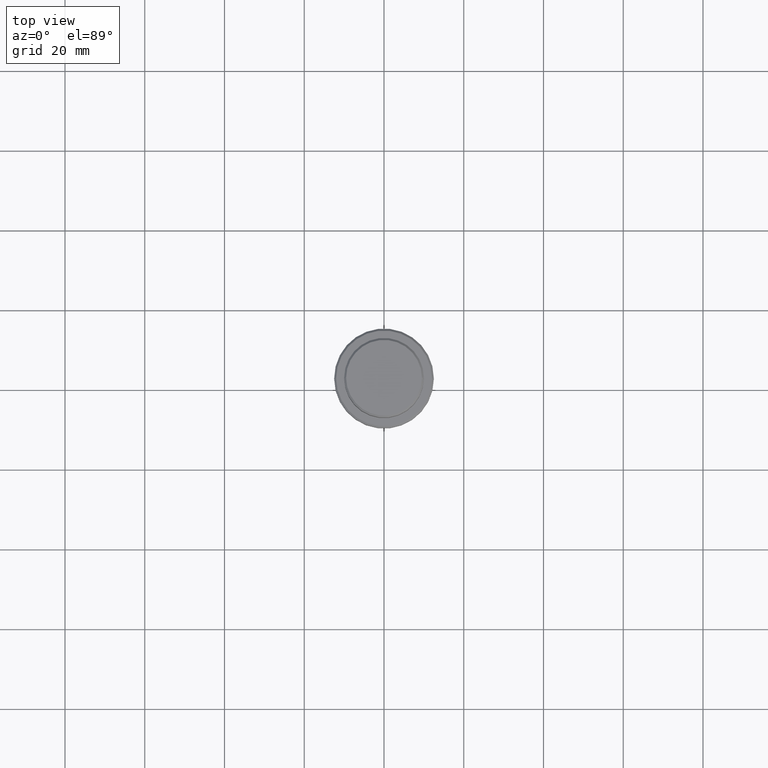
[diagram: clean part render]
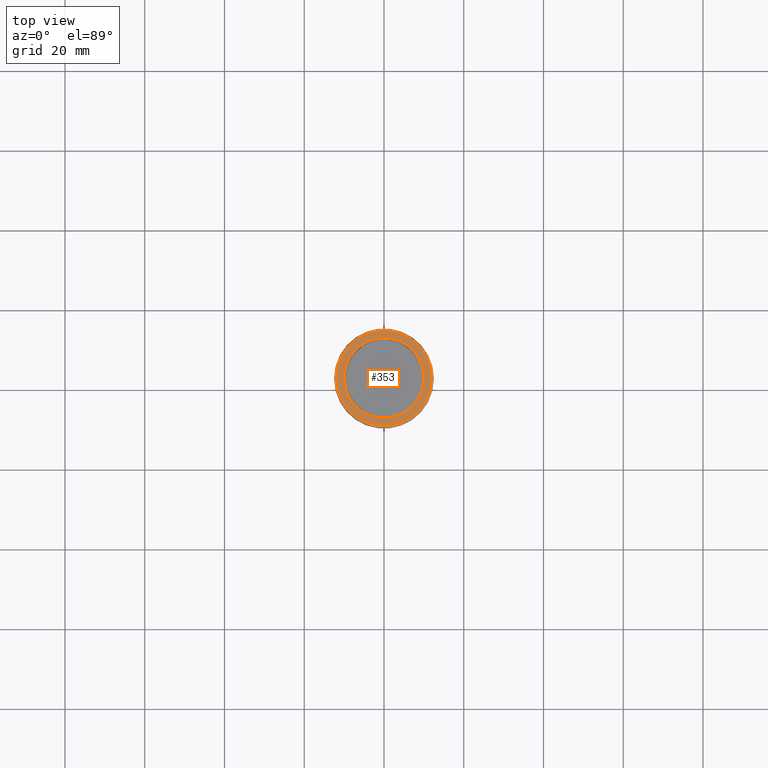
[diagram: same view with one face highlighted and labeled with its STEP entity id]
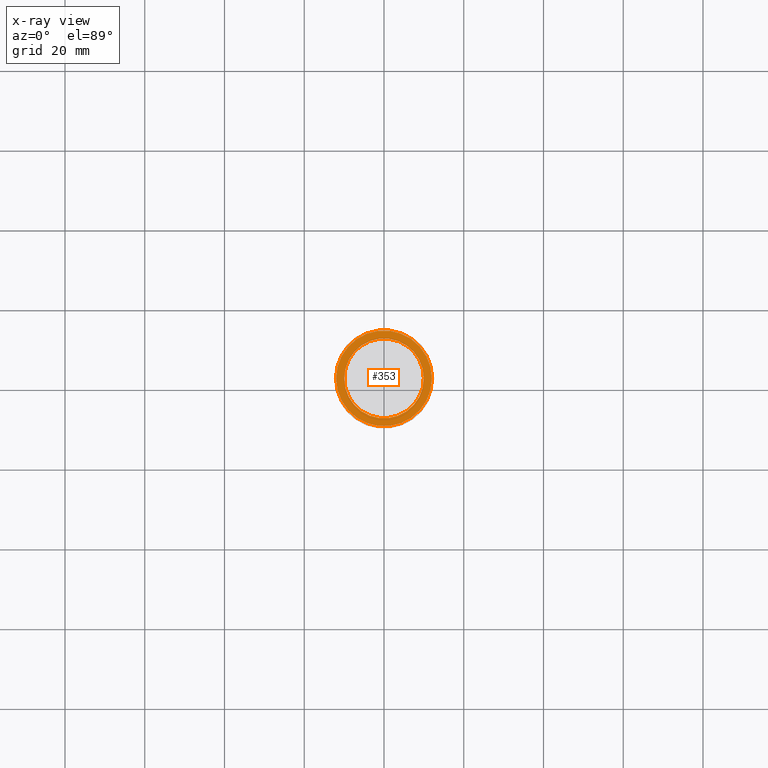
[diagram: x-ray of the same camera — body ghosted, the highlighted face saturated]
A machine part, top view. The second image highlights one B-rep face of the part: STEP entity #353.
The next image is the same camera in x-ray: the body ghosted, the highlighted face saturated — about 0% of this face is hidden behind the body in this view.
In plain terms, the highlighted planar face has unit normal (0, -0, 1).
Its self-contained STEP definition (entity closure, byte-faithful):
#60 = DIRECTION ( 'NONE',  ( 0.000000000000000000, 0.000000000000000000, -1.000000000000000000 ) ) ;
#87 = DIRECTION ( 'NONE',  ( 1.000000000000000000, 0.000000000000000000, 0.000000000000000000 ) ) ;
#156 = DIRECTION ( 'NONE',  ( 1.000000000000000000, 0.000000000000000000, 0.000000000000000000 ) ) ;
#179 = EDGE_CURVE ( 'NONE', #275, #520, #192, .T. ) ;
#192 = CIRCLE ( 'NONE', #987, 9.999999999999994671 ) ;
#199 = CARTESIAN_POINT ( 'NONE',  ( -9.999999999999994671, 1.224646799147352665E-15, -9.000000000000001776 ) ) ;
#258 = AXIS2_PLACEMENT_3D ( 'NONE', #312, #821, #290 ) ;
#265 = DIRECTION ( 'NONE',  ( 1.000000000000000000, 0.000000000000000000, 0.000000000000000000 ) ) ;
#275 = VERTEX_POINT ( 'NONE', #199 ) ;
#290 = DIRECTION ( 'NONE',  ( 1.000000000000000000, 0.000000000000000000, 0.000000000000000000 ) ) ;
#292 = DIRECTION ( 'NONE',  ( -0.000000000000000000, -0.000000000000000000, 1.000000000000000000 ) ) ;
#312 = CARTESIAN_POINT ( 'NONE',  ( 0.000000000000000000, 9.499999999999994671, -9.000000000000001776 ) ) ;
#353 = ADVANCED_FACE ( 'NONE', ( #1270, #1181 ), #1294, .T. ) ;
#420 = CIRCLE ( 'NONE', #576, 12.00000000000001066 ) ;
#451 = CARTESIAN_POINT ( 'NONE',  ( 0.000000000000000000, 0.000000000000000000, -9.000000000000001776 ) ) ;
#479 = DIRECTION ( 'NONE',  ( 0.000000000000000000, 0.000000000000000000, -1.000000000000000000 ) ) ;
#493 = CARTESIAN_POINT ( 'NONE',  ( -12.00000000000001066, 0.000000000000000000, -9.000000000000001776 ) ) ;
#520 = VERTEX_POINT ( 'NONE', #793 ) ;
#544 = VERTEX_POINT ( 'NONE', #586 ) ;
#560 = EDGE_CURVE ( 'NONE', #520, #275, #1194, .T. ) ;
#576 = AXIS2_PLACEMENT_3D ( 'NONE', #1223, #1339, #265 ) ;
#586 = CARTESIAN_POINT ( 'NONE',  ( 12.00000000000001066, 1.500192328955508326E-15, -9.000000000000001776 ) ) ;
#624 = EDGE_CURVE ( 'NONE', #544, #1203, #420, .T. ) ;
#677 = CARTESIAN_POINT ( 'NONE',  ( 0.000000000000000000, 0.000000000000000000, -9.000000000000001776 ) ) ;
#680 = ORIENTED_EDGE ( 'NONE', *, *, #560, .T. ) ;
#785 = AXIS2_PLACEMENT_3D ( 'NONE', #1263, #292, #87 ) ;
#793 = CARTESIAN_POINT ( 'NONE',  ( 9.999999999999994671, 0.000000000000000000, -9.000000000000001776 ) ) ;
#821 = DIRECTION ( 'NONE',  ( 0.000000000000000000, -0.000000000000000000, 1.000000000000000000 ) ) ;
#897 = AXIS2_PLACEMENT_3D ( 'NONE', #451, #479, #1118 ) ;
#987 = AXIS2_PLACEMENT_3D ( 'NONE', #677, #60, #156 ) ;
#1009 = EDGE_LOOP ( 'NONE', ( #680, #1288 ) ) ;
#1107 = CIRCLE ( 'NONE', #785, 12.00000000000001066 ) ;
#1118 = DIRECTION ( 'NONE',  ( 1.000000000000000000, 0.000000000000000000, 0.000000000000000000 ) ) ;
#1181 = FACE_BOUND ( 'NONE', #1009, .T. ) ;
#1194 = CIRCLE ( 'NONE', #897, 9.999999999999994671 ) ;
#1203 = VERTEX_POINT ( 'NONE', #493 ) ;
#1216 = EDGE_CURVE ( 'NONE', #1203, #544, #1107, .T. ) ;
#1223 = CARTESIAN_POINT ( 'NONE',  ( 0.000000000000000000, 0.000000000000000000, -9.000000000000001776 ) ) ;
#1263 = CARTESIAN_POINT ( 'NONE',  ( 0.000000000000000000, 0.000000000000000000, -9.000000000000001776 ) ) ;
#1270 = FACE_OUTER_BOUND ( 'NONE', #1309, .T. ) ;
#1282 = ORIENTED_EDGE ( 'NONE', *, *, #1216, .T. ) ;
#1288 = ORIENTED_EDGE ( 'NONE', *, *, #179, .T. ) ;
#1294 = PLANE ( 'NONE',  #258 ) ;
#1309 = EDGE_LOOP ( 'NONE', ( #1282, #1393 ) ) ;
#1339 = DIRECTION ( 'NONE',  ( -0.000000000000000000, -0.000000000000000000, 1.000000000000000000 ) ) ;
#1393 = ORIENTED_EDGE ( 'NONE', *, *, #624, .T. ) ;